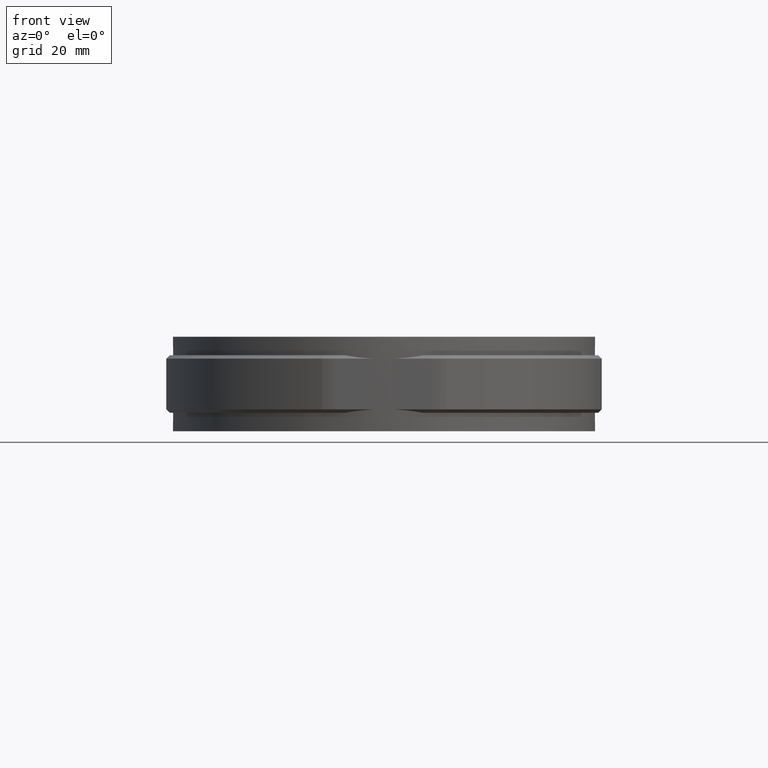
[diagram: clean part render]
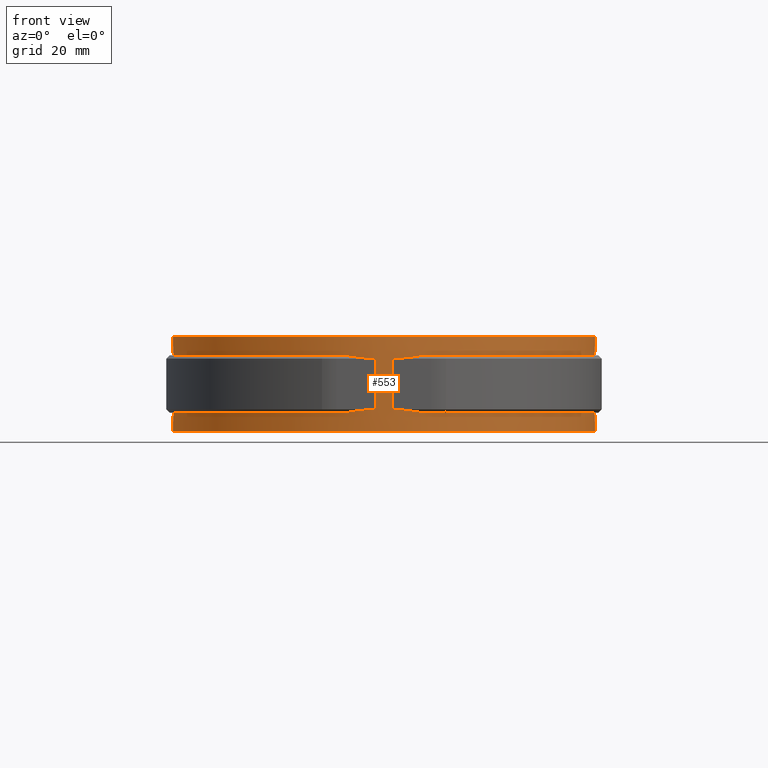
[diagram: same view with one face highlighted and labeled with its STEP entity id]
A machine part, front view. The second image highlights one B-rep face of the part: STEP entity #553.
In plain terms, the highlighted cylindrical surface (partial cylindrical patch) has radius 62.5 mm, axis along (0, 0, -1).
Its self-contained STEP definition (entity closure, byte-faithful):
#553 = ADVANCED_FACE( '', ( #1018 ), #1019, .T. );
#1018 = FACE_OUTER_BOUND( '', #2336, .T. );
#1019 = CYLINDRICAL_SURFACE( '', #2337, 62.5000000000000 );
#2336 = EDGE_LOOP( '', ( #4830, #4831, #4832, #4833, #4834, #4835, #4836, #4837, #4838, #4839, #4840, #4841, #4842, #4843, #4844, #4845 ) );
#2337 = AXIS2_PLACEMENT_3D( '', #4846, #4847, #4848 );
#4830 = ORIENTED_EDGE( '', *, *, #7223, .T. );
#4831 = ORIENTED_EDGE( '', *, *, #7240, .T. );
#4832 = ORIENTED_EDGE( '', *, *, #7241, .T. );
#4833 = ORIENTED_EDGE( '', *, *, #7242, .F. );
#4834 = ORIENTED_EDGE( '', *, *, #7243, .T. );
#4835 = ORIENTED_EDGE( '', *, *, #7244, .F. );
#4836 = ORIENTED_EDGE( '', *, *, #7227, .T. );
#4837 = ORIENTED_EDGE( '', *, *, #7245, .F. );
#4838 = ORIENTED_EDGE( '', *, *, #7236, .F. );
#4839 = ORIENTED_EDGE( '', *, *, #7246, .F. );
#4840 = ORIENTED_EDGE( '', *, *, #7247, .T. );
#4841 = ORIENTED_EDGE( '', *, *, #7248, .F. );
#4842 = ORIENTED_EDGE( '', *, *, #7249, .T. );
#4843 = ORIENTED_EDGE( '', *, *, #7250, .T. );
#4844 = ORIENTED_EDGE( '', *, *, #7230, .F. );
#4845 = ORIENTED_EDGE( '', *, *, #7251, .T. );
#4846 = CARTESIAN_POINT( '', ( -8.67361737988404E-016, -6.93889390390723E-015, -14.0000000000000 ) );
#4847 = DIRECTION( '', ( 0.000000000000000, 0.000000000000000, -1.00000000000000 ) );
#4848 = DIRECTION( '', ( -0.112903225806450, -0.993605989113642, 0.000000000000000 ) );
#7223 = EDGE_CURVE( '', #8362, #8360, #8363, .T. );
#7227 = EDGE_CURVE( '', #8370, #8368, #8371, .T. );
#7230 = EDGE_CURVE( '', #8375, #8376, #8377, .T. );
#7236 = EDGE_CURVE( '', #8386, #8388, #8389, .T. );
#7240 = EDGE_CURVE( '', #8360, #8395, #8396, .F. );
#7241 = EDGE_CURVE( '', #8395, #8397, #8398, .T. );
#7242 = EDGE_CURVE( '', #8399, #8397, #8400, .F. );
#7243 = EDGE_CURVE( '', #8399, #8401, #8402, .F. );
#7244 = EDGE_CURVE( '', #8370, #8401, #8403, .F. );
#7245 = EDGE_CURVE( '', #8388, #8368, #8404, .T. );
#7246 = EDGE_CURVE( '', #8405, #8386, #8406, .F. );
#7247 = EDGE_CURVE( '', #8405, #8407, #8408, .F. );
#7248 = EDGE_CURVE( '', #8409, #8407, #8410, .T. );
#7249 = EDGE_CURVE( '', #8409, #8411, #8412, .T. );
#7250 = EDGE_CURVE( '', #8411, #8376, #8413, .F. );
#7251 = EDGE_CURVE( '', #8375, #8362, #8414, .T. );
#8360 = VERTEX_POINT( '', #12135 );
#8362 = VERTEX_POINT( '', #12138 );
#8363 = LINE( '', #12139, #12140 );
#8368 = VERTEX_POINT( '', #12147 );
#8370 = VERTEX_POINT( '', #12150 );
#8371 = LINE( '', #12151, #12152 );
#8375 = VERTEX_POINT( '', #12160 );
#8376 = VERTEX_POINT( '', #12161 );
#8377 = LINE( '', #12162, #12163 );
#8386 = VERTEX_POINT( '', #12180 );
#8388 = VERTEX_POINT( '', #12183 );
#8389 = LINE( '', #12184, #12185 );
#8395 = VERTEX_POINT( '', #12194 );
#8396 = CIRCLE( '', #12195, 62.5000000000000 );
#8397 = VERTEX_POINT( '', #12196 );
#8398 = ELLIPSE( '', #12197, 88.3883476483185, 62.5000000000000 );
#8399 = VERTEX_POINT( '', #12198 );
#8400 = LINE( '', #12199, #12200 );
#8401 = VERTEX_POINT( '', #12201 );
#8402 = ELLIPSE( '', #12202, 88.3883476483184, 62.5000000000000 );
#8403 = CIRCLE( '', #12203, 62.5000000000000 );
#8404 = CIRCLE( '', #12204, 62.5000000000000 );
#8405 = VERTEX_POINT( '', #12205 );
#8406 = CIRCLE( '', #12206, 62.5000000000000 );
#8407 = VERTEX_POINT( '', #12207 );
#8408 = ELLIPSE( '', #12208, 88.3883476483184, 62.5000000000000 );
#8409 = VERTEX_POINT( '', #12209 );
#8410 = LINE( '', #12210, #12211 );
#8411 = VERTEX_POINT( '', #12212 );
#8412 = ELLIPSE( '', #12213, 88.3883476483185, 62.5000000000000 );
#8413 = CIRCLE( '', #12214, 62.5000000000000 );
#8414 = CIRCLE( '', #12215, 62.5000000000000 );
#12135 = CARTESIAN_POINT( '', ( 6.00000000000003, 62.2113333726259, -8.50000000000000 ) );
#12138 = CARTESIAN_POINT( '', ( 6.00000000000003, 62.2113333726259, -14.0000000000000 ) );
#12139 = CARTESIAN_POINT( '', ( 6.00000000000003, 62.2113333726259, -14.0000000000000 ) );
#12140 = VECTOR( '', #14126, 1000.00000000000 );
#12147 = CARTESIAN_POINT( '', ( 6.00000000000003, 62.2113333726259, 14.0000000000000 ) );
#12150 = CARTESIAN_POINT( '', ( 6.00000000000000, 62.2113333726259, 8.50000000000000 ) );
#12151 = CARTESIAN_POINT( '', ( 6.00000000000003, 62.2113333726259, -14.0000000000000 ) );
#12152 = VECTOR( '', #14130, 1000.00000000000 );
#12160 = CARTESIAN_POINT( '', ( -6.00000000000000, 62.2113333726259, -14.0000000000000 ) );
#12161 = CARTESIAN_POINT( '', ( -6.00000000000000, 62.2113333726259, -8.50000000000000 ) );
#12162 = CARTESIAN_POINT( '', ( -6.00000000000000, 62.2113333726259, -14.0000000000000 ) );
#12163 = VECTOR( '', #14132, 1000.00000000000 );
#12180 = CARTESIAN_POINT( '', ( -6.00000000000000, 62.2113333726259, 8.50000000000000 ) );
#12183 = CARTESIAN_POINT( '', ( -6.00000000000000, 62.2113333726259, 14.0000000000000 ) );
#12184 = CARTESIAN_POINT( '', ( -6.00000000000000, 62.2113333726259, -14.0000000000000 ) );
#12185 = VECTOR( '', #14136, 1000.00000000000 );
#12194 = CARTESIAN_POINT( '', ( 11.4082207201651, -61.4500000000000, -8.50000000000000 ) );
#12195 = AXIS2_PLACEMENT_3D( '', #14140, #14141, #14142 );
#12196 = CARTESIAN_POINT( '', ( 2.50000000000001, -62.4499799839840, -7.50002001601599 ) );
#12197 = AXIS2_PLACEMENT_3D( '', #14143, #14144, #14145 );
#12198 = CARTESIAN_POINT( '', ( 2.50000000000001, -62.4499799839840, 7.50002001601600 ) );
#12199 = CARTESIAN_POINT( '', ( 2.50000000000001, -62.4499799839840, -14.0000000000000 ) );
#12200 = VECTOR( '', #14146, 1000.00000000000 );
#12201 = CARTESIAN_POINT( '', ( 11.4082207201651, -61.4500000000000, 8.50000000000000 ) );
#12202 = AXIS2_PLACEMENT_3D( '', #14147, #14148, #14149 );
#12203 = AXIS2_PLACEMENT_3D( '', #14150, #14151, #14152 );
#12204 = AXIS2_PLACEMENT_3D( '', #14153, #14154, #14155 );
#12205 = CARTESIAN_POINT( '', ( -11.4082207201652, -61.4500000000000, 8.50000000000000 ) );
#12206 = AXIS2_PLACEMENT_3D( '', #14156, #14157, #14158 );
#12207 = CARTESIAN_POINT( '', ( -2.50000000000001, -62.4499799839840, 7.50002001601600 ) );
#12208 = AXIS2_PLACEMENT_3D( '', #14159, #14160, #14161 );
#12209 = CARTESIAN_POINT( '', ( -2.50000000000001, -62.4499799839840, -7.50002001601599 ) );
#12210 = CARTESIAN_POINT( '', ( -2.50000000000001, -62.4499799839840, -14.0000000000000 ) );
#12211 = VECTOR( '', #14162, 1000.00000000000 );
#12212 = CARTESIAN_POINT( '', ( -11.4082207201652, -61.4500000000000, -8.50000000000000 ) );
#12213 = AXIS2_PLACEMENT_3D( '', #14163, #14164, #14165 );
#12214 = AXIS2_PLACEMENT_3D( '', #14166, #14167, #14168 );
#12215 = AXIS2_PLACEMENT_3D( '', #14169, #14170, #14171 );
#14126 = DIRECTION( '', ( 0.000000000000000, 0.000000000000000, 1.00000000000000 ) );
#14130 = DIRECTION( '', ( 0.000000000000000, 0.000000000000000, 1.00000000000000 ) );
#14132 = DIRECTION( '', ( 0.000000000000000, 0.000000000000000, 1.00000000000000 ) );
#14136 = DIRECTION( '', ( 0.000000000000000, 0.000000000000000, 1.00000000000000 ) );
#14140 = CARTESIAN_POINT( '', ( -8.67361737988404E-016, -6.93889390390723E-015, -8.50000000000000 ) );
#14141 = DIRECTION( '', ( 0.000000000000000, 0.000000000000000, 1.00000000000000 ) );
#14142 = DIRECTION( '', ( 1.00000000000000, 0.000000000000000, 0.000000000000000 ) );
#14143 = CARTESIAN_POINT( '', ( -8.67361737988404E-016, -6.93889390390723E-015, -69.9500000000000 ) );
#14144 = DIRECTION( '', ( 9.81307786677359E-018, -0.707106781186548, -0.707106781186547 ) );
#14145 = DIRECTION( '', ( 9.81307786677359E-018, -0.707106781186547, 0.707106781186548 ) );
#14146 = DIRECTION( '', ( 0.000000000000000, 0.000000000000000, 1.00000000000000 ) );
#14147 = CARTESIAN_POINT( '', ( -8.67361737988404E-016, -6.93889390390723E-015, 69.9500000000000 ) );
#14148 = DIRECTION( '', ( -9.81307786677359E-018, 0.707106781186547, -0.707106781186548 ) );
#14149 = DIRECTION( '', ( -9.81307786677359E-018, 0.707106781186548, 0.707106781186547 ) );
#14150 = CARTESIAN_POINT( '', ( -8.67361737988404E-016, -6.93889390390723E-015, 8.50000000000000 ) );
#14151 = DIRECTION( '', ( 0.000000000000000, 0.000000000000000, 1.00000000000000 ) );
#14152 = DIRECTION( '', ( 1.00000000000000, 0.000000000000000, 0.000000000000000 ) );
#14153 = CARTESIAN_POINT( '', ( -8.67361737988404E-016, -6.93889390390723E-015, 14.0000000000000 ) );
#14154 = DIRECTION( '', ( 0.000000000000000, 0.000000000000000, 1.00000000000000 ) );
#14155 = DIRECTION( '', ( 1.00000000000000, -4.16333634234434E-017, 0.000000000000000 ) );
#14156 = CARTESIAN_POINT( '', ( -8.67361737988404E-016, -6.93889390390723E-015, 8.50000000000000 ) );
#14157 = DIRECTION( '', ( 0.000000000000000, 0.000000000000000, 1.00000000000000 ) );
#14158 = DIRECTION( '', ( 1.00000000000000, 0.000000000000000, 0.000000000000000 ) );
#14159 = CARTESIAN_POINT( '', ( -8.67361737988404E-016, -6.93889390390723E-015, 69.9500000000000 ) );
#14160 = DIRECTION( '', ( 9.81307786677359E-018, 0.707106781186547, -0.707106781186548 ) );
#14161 = DIRECTION( '', ( 9.81307786677359E-018, 0.707106781186548, 0.707106781186547 ) );
#14162 = DIRECTION( '', ( 0.000000000000000, 0.000000000000000, 1.00000000000000 ) );
#14163 = CARTESIAN_POINT( '', ( -8.67361737988404E-016, -6.93889390390723E-015, -69.9500000000000 ) );
#14164 = DIRECTION( '', ( -9.81307786677359E-018, -0.707106781186548, -0.707106781186547 ) );
#14165 = DIRECTION( '', ( -9.81307786677359E-018, -0.707106781186547, 0.707106781186548 ) );
#14166 = CARTESIAN_POINT( '', ( -8.67361737988404E-016, -6.93889390390723E-015, -8.50000000000000 ) );
#14167 = DIRECTION( '', ( 0.000000000000000, 0.000000000000000, 1.00000000000000 ) );
#14168 = DIRECTION( '', ( 1.00000000000000, 0.000000000000000, 0.000000000000000 ) );
#14169 = CARTESIAN_POINT( '', ( -8.67361737988404E-016, -6.93889390390723E-015, -14.0000000000000 ) );
#14170 = DIRECTION( '', ( 0.000000000000000, 0.000000000000000, 1.00000000000000 ) );
#14171 = DIRECTION( '', ( 1.00000000000000, -4.16333634234434E-017, 0.000000000000000 ) );